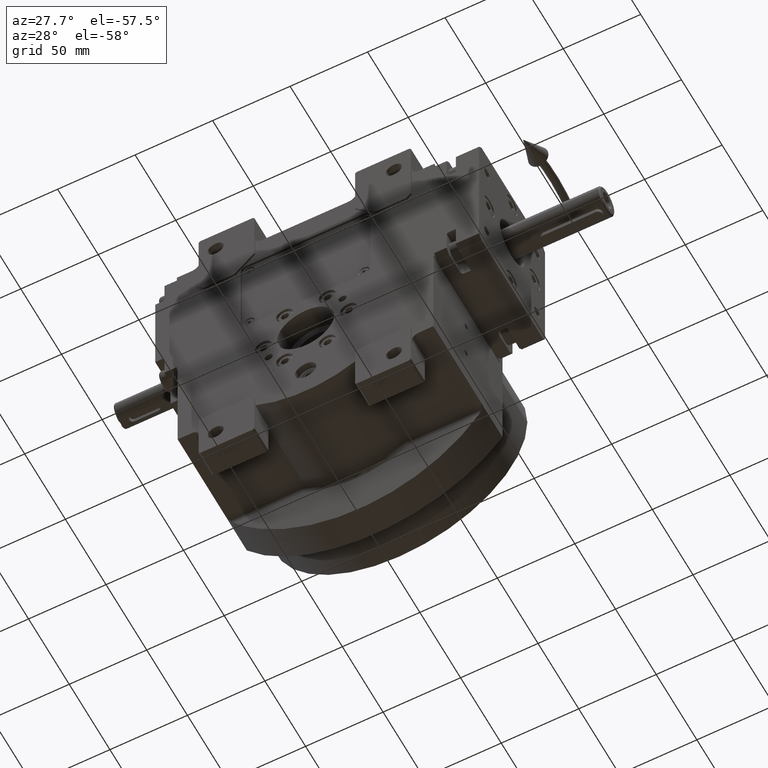
[diagram: clean part render]
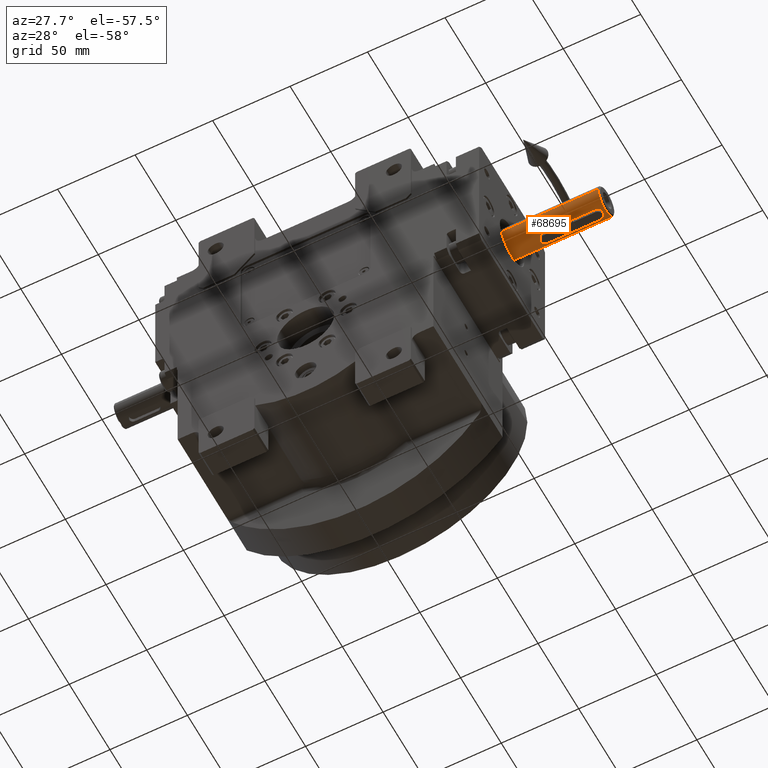
[diagram: same view with one face highlighted and labeled with its STEP entity id]
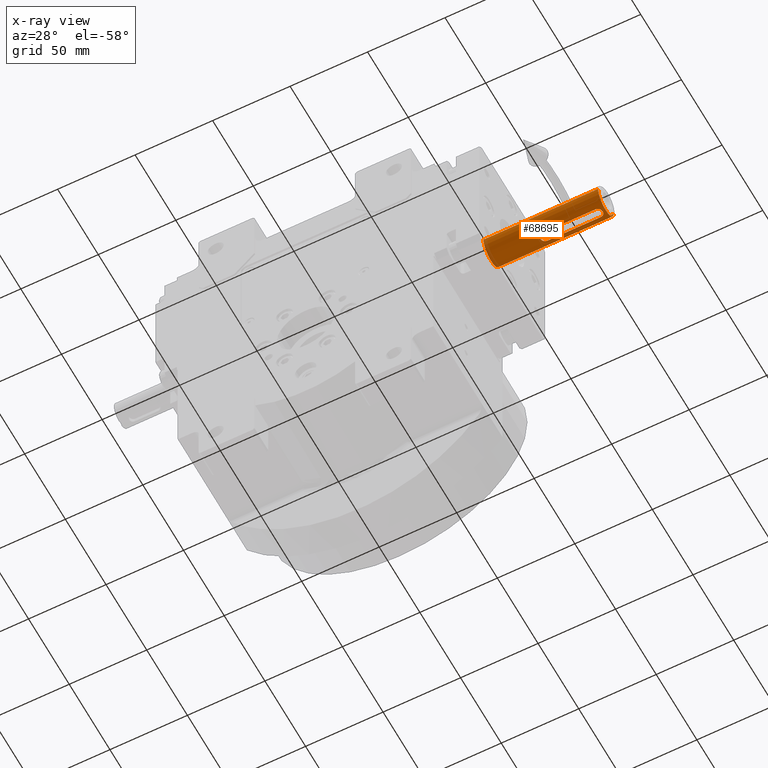
[diagram: x-ray of the same camera — body ghosted, the highlighted face saturated]
A machine part, auxiliary view. The second image highlights one B-rep face of the part: STEP entity #68695.
The next image is the same camera in x-ray: the body ghosted, the highlighted face saturated — about 4% of this face is hidden behind the body in this view.
In plain terms, the highlighted cylindrical surface (edge-blend (fillet) strip) has radius 9.5 mm, axis along (-1, -0, -0).
Its self-contained STEP definition (entity closure, byte-faithful):
#104 = CARTESIAN_POINT ( 'NONE',  ( 2.786101665362830992, -99.38739665115124922, 9.082041199737556525 ) ) ;
#459 = CARTESIAN_POINT ( 'NONE',  ( 1.235793668741991036, -97.76628801565973959, 9.419140061994129454 ) ) ;
#614 = CARTESIAN_POINT ( 'NONE',  ( 5.348145711521341872E-11, -137.4999999999946283, 9.499999999999761968 ) ) ;
#830 = CARTESIAN_POINT ( 'NONE',  ( 2.999999999999923173, -100.2965243989202548, 9.015959503623328430 ) ) ;
#978 = CARTESIAN_POINT ( 'NONE',  ( 2.097753202479689438, -136.6448874191244727, 9.265577959733482416 ) ) ;
#1197 = CARTESIAN_POINT ( 'NONE',  ( -2.009855692750635026, -98.27258817053152029, 9.284892350035061526 ) ) ;
#1447 = CARTESIAN_POINT ( 'NONE',  ( -2.979241966011219489, -134.9036005349896641, 9.023080024022270607 ) ) ;
#1466 = B_SPLINE_CURVE_WITH_KNOTS ( 'NONE', 3,
 ( #614, #68795, #28838, #29201, #35432, #1690, #63652, #40969, #17855, #51225, #68073, #18928, #18579, #46815, #35081, #63299, #24055, #18211, #34716, #69162, #7563, #978, #13066, #45723, #6484, #11987, #57442, #67714, #57093, #41325, #7203, #17507, #39881, #57804, #40238, #34350, #62215 ),
 .UNSPECIFIED., .F., .F.,
 ( 4, 2, 2, 1, 1, 1, 2, 2, 2, 2, 2, 2, 2, 2, 2, 2, 1, 1, 2, 2, 4 ),
 ( 0.5000000000000000000, 0.5624999999999529265, 0.5937499999999292788, 0.6093749999999175104, 0.6171874999999129585, 0.6210937499999107381, 0.6230468749999096278, 0.6249999999999085176, 0.6874999999998867573, 0.7187499999998735456, 0.7343749999998692157, 0.7421874999998671063, 0.7499999999998649969, 0.8124999999998300249, 0.8437499999998124833, 0.8593749999998037126, 0.8671874999997993827, 0.8710937499998030464, 0.8730468749998048228, 0.8749999999998067102, 1.000000000000000000 ),
 .UNSPECIFIED. ) ;
#1549 = CARTESIAN_POINT ( 'NONE',  ( 2.233000108996110900, -98.49633364467418062, 9.234080587709756927 ) ) ;
#1690 = CARTESIAN_POINT ( 'NONE',  ( 0.9122892548982852734, -137.3583703725897180, 9.456103506591537311 ) ) ;
#1912 = DIRECTION ( 'NONE',  ( 4.683861624749757595E-31, -1.000000000000000000, -9.367723249499515189E-31 ) ) ;
#2182 = CARTESIAN_POINT ( 'NONE',  ( -3.000000000000099032, -134.5000000000000000, 9.013878188659973034 ) ) ;
#2533 = CARTESIAN_POINT ( 'NONE',  ( -1.515281974658803321, -137.0910376722993647, 9.377877325281463783 ) ) ;
#2954 = CARTESIAN_POINT ( 'NONE',  ( -3.000000000000082601, -100.5000000000000000, 9.013878188659973034 ) ) ;
#3005 = CARTESIAN_POINT ( 'NONE',  ( -2.759557796081211656, -99.32315904151028008, 9.090128972670342478 ) ) ;
#3180 = DIRECTION ( 'NONE',  ( 4.683861624749757595E-31, -1.000000000000000000, -9.367723249499515189E-31 ) ) ;
#3870 = CARTESIAN_POINT ( 'NONE',  ( 9.252591108064056158, -139.4998466943011977, 2.486564772192656037 ) ) ;
#3964 = VERTEX_POINT ( 'NONE', #15832 ) ;
#4692 = EDGE_CURVE ( 'NONE', #3964, #35497, #35842, .T. ) ;
#5620 = CARTESIAN_POINT ( 'NONE',  ( 1.181140547334593727, -97.74227524908900477, 9.426234887611801838 ) ) ;
#5980 = CARTESIAN_POINT ( 'NONE',  ( 2.779390155847576871, -99.37082958573847691, 9.084081746770817034 ) ) ;
#6333 = CARTESIAN_POINT ( 'NONE',  ( -1.110854957117733743, -97.71319310011547543, 9.434807596888386882 ) ) ;
#6484 = CARTESIAN_POINT ( 'NONE',  ( 2.602468639309346354, -135.9955733868266350, 9.137631674337931997 ) ) ;
#6703 = CARTESIAN_POINT ( 'NONE',  ( -1.898695336270241452, -98.17662246852120234, 9.308038153982771234 ) ) ;
#6875 = AXIS2_PLACEMENT_3D ( 'NONE', #52154, #1912, #69366 ) ;
#7071 = CARTESIAN_POINT ( 'NONE',  ( -2.097753284790786488, -98.35511266164887445, 9.265577940295855797 ) ) ;
#7203 = CARTESIAN_POINT ( 'NONE',  ( 2.759557787002767881, -135.6768409796904393, 9.090128969929150315 ) ) ;
#7323 = CARTESIAN_POINT ( 'NONE',  ( -2.853717067103960670, -135.4266295672364038, 9.061558691766251172 ) ) ;
#7423 = CARTESIAN_POINT ( 'NONE',  ( -2.737669274489143323, -99.27301793146652642, 9.096856662832257356 ) ) ;
#7563 = CARTESIAN_POINT ( 'NONE',  ( 2.076755474643335209, -136.6651843288679515, 9.270280646437230487 ) ) ;
#7676 = CARTESIAN_POINT ( 'NONE',  ( -2.654035305622171936, -135.9122420898385144, 9.123169023331190175 ) ) ;
#7934 = ORIENTED_EDGE ( 'NONE', *, *, #11785, .F. ) ;
#7987 = CARTESIAN_POINT ( 'NONE',  ( 2.999999999999917843, -100.5000000000000000, 9.013878188659973034 ) ) ;
#8060 = CARTESIAN_POINT ( 'NONE',  ( -1.158690052085281197, -137.2672150612251301, 9.429034014197243962 ) ) ;
#8470 = LINE ( 'NONE', #2954, #63814 ) ;
#8629 = ORIENTED_EDGE ( 'NONE', *, *, #61013, .T. ) ;
#8780 = CARTESIAN_POINT ( 'NONE',  ( -1.288025300381495208, -137.2096973346190225, 9.412060771001355519 ) ) ;
#9499 = CARTESIAN_POINT ( 'NONE',  ( -1.235793688551417802, -137.2337119753647698, 9.419140061578065826 ) ) ;
#10496 = CARTESIAN_POINT ( 'NONE',  ( -1.243527020587133824, -139.4998466943041819, 9.499846689728636662 ) ) ;
#11127 = CARTESIAN_POINT ( 'NONE',  ( -0.9122597830392107365, -97.64162015259859118, 9.456107010292281956 ) ) ;
#11193 = ORIENTED_EDGE ( 'NONE', *, *, #31422, .F. ) ;
#11492 = CARTESIAN_POINT ( 'NONE',  ( 1.324139233458395237, -97.80771359803623000, 9.406950157631133180 ) ) ;
#11785 = EDGE_CURVE ( 'NONE', #15199, #44065, #41003, .T. ) ;
#11846 = CARTESIAN_POINT ( 'NONE',  ( -0.9847355283867276210, -97.66541312523159490, 9.448973010786199112 ) ) ;
#11987 = CARTESIAN_POINT ( 'NONE',  ( 2.645266956385125656, -135.9173894447391717, 9.124972350850661940 ) ) ;
#12202 = CARTESIAN_POINT ( 'NONE',  ( 1.158689120431839026, -97.73278455093795003, 9.429034126038732921 ) ) ;
#12380 = CARTESIAN_POINT ( 'NONE',  ( -9.500000000000065725, -65.50000000000000000, 5.273559366969493567E-13 ) ) ;
#12567 = CARTESIAN_POINT ( 'NONE',  ( 1.210162142626706627, -97.75480632011371540, 9.422533050649411379 ) ) ;
#12834 = CARTESIAN_POINT ( 'NONE',  ( -2.779390174406766167, -135.6291703686030417, 9.084081743598442671 ) ) ;
#13066 = CARTESIAN_POINT ( 'NONE',  ( 2.309830933422241994, -136.4328102777803053, 9.217002154046662454 ) ) ;
#13549 = CARTESIAN_POINT ( 'NONE',  ( -1.763474083807786252, -136.9348268693561579, 9.335481082783305240 ) ) ;
#13927 = CARTESIAN_POINT ( 'NONE',  ( -2.211729656253432985, -136.5271384844810427, 9.239144198828508792 ) ) ;
#14333 = VERTEX_POINT ( 'NONE', #44129 ) ;
#14498 = B_SPLINE_CURVE_WITH_KNOTS ( 'NONE', 3,
 ( #34937, #830, #39374, #40452, #56228, #68293, #61718, #23912, #104, #5980, #28681, #18070, #28325, #62789, #45943, #33856, #61353, #23198, #1549, #22461, #46303, #67202, #62432, #50709, #67570, #29060, #11492, #18420, #459, #12567, #5620, #16985, #22826, #12202, #45209, #17366, #39743, #17715, #27966, #62076, #11127, #11846, #34206, #6333, #51072, #45592, #33489, #34562, #67938, #40100, #56943, #6703, #51449, #1197, #57306, #23547, #7071, #55857, #29416, #51795, #50354, #36030, #63873, #7423, #41915, #3005, #25008, #30522, #19516, #31258, #29785, #57665 ),
 .UNSPECIFIED., .F., .F.,
 ( 4, 2, 2, 1, 1, 1, 2, 2, 2, 2, 2, 2, 2, 2, 2, 2, 1, 1, 2, 2, 2, 2, 2, 1, 1, 1, 2, 2, 2, 2, 2, 2, 2, 2, 2, 2, 1, 1, 2, 2, 4 ),
 ( 0.000000000000000000, 0.06250000000009500734, 0.09375000000014034607, 0.1093750000001630363, 0.1171875000001744160, 0.1210937500001801337, 0.1230468750001829925, 0.1250000000001858513, 0.1875000000001509903, 0.2187500000001353917, 0.2343750000001262046, 0.2421875000001215972, 0.2500000000001169620, 0.3125000000000708877, 0.3437500000000467404, 0.3593750000000346390, 0.3671875000000274780, 0.3710937500000238698, 0.3730468750000232592, 0.3750000000000225930, 0.5000000000000260902, 0.5625000000000279776, 0.5937500000000288658, 0.6093750000000299760, 0.6171875000000305311, 0.6210937500000315303, 0.6230468750000327516, 0.6250000000000338618, 0.6875000000000427436, 0.7187500000000471845, 0.7343750000000494049, 0.7421875000000506262, 0.7500000000000518474, 0.8125000000000587308, 0.8437500000000640599, 0.8593750000000667244, 0.8671875000000652811, 0.8710937500000643929, 0.8730468750000640599, 0.8750000000000636158, 1.000000000000000000 ),
 .UNSPECIFIED. ) ;
#15199 = VERTEX_POINT ( 'NONE', #15704 ) ;
#15209 = VECTOR ( 'NONE', #28878, 1000.000000000000000 ) ;
#15704 = CARTESIAN_POINT ( 'NONE',  ( 9.499999999999934275, -65.50000000000000000, 0.000000000000000000 ) ) ;
#15832 = CARTESIAN_POINT ( 'NONE',  ( 2.999999999999917843, -100.5000000000000000, 9.013878188659973034 ) ) ;
#16801 = VERTEX_POINT ( 'NONE', #12380 ) ;
#16985 = CARTESIAN_POINT ( 'NONE',  ( 1.168895048913221046, -97.73708418927932939, 9.427766392780942084 ) ) ;
#17188 = VERTEX_POINT ( 'NONE', #32861 ) ;
#17366 = CARTESIAN_POINT ( 'NONE',  ( 0.3746751369924418706, -97.50000002630594054, 9.499993001932642400 ) ) ;
#17507 = CARTESIAN_POINT ( 'NONE',  ( 2.764238482857352075, -135.6657621566685634, 9.088697174642812016 ) ) ;
#17715 = CARTESIAN_POINT ( 'NONE',  ( -0.3796884225539630120, -97.51759804841002222, 9.494152383383214655 ) ) ;
#17855 = CARTESIAN_POINT ( 'NONE',  ( 1.110860993346935333, -137.2868044789691453, 9.434806857722406903 ) ) ;
#17969 = CARTESIAN_POINT ( 'NONE',  ( -2.830818324944660791, -135.4952364210569442, 9.068480760018553966 ) ) ;
#18070 = CARTESIAN_POINT ( 'NONE',  ( 2.771832886844528776, -99.35241223361512652, 9.086380949645821659 ) ) ;
#18211 = CARTESIAN_POINT ( 'NONE',  ( 1.943068524284928156, -136.7864859858514990, 9.299014728045641220 ) ) ;
#18420 = CARTESIAN_POINT ( 'NONE',  ( 1.288025288732198126, -97.79030265976052760, 9.412060770623982719 ) ) ;
#18579 = CARTESIAN_POINT ( 'NONE',  ( 1.281189302773732663, -137.2162322305360931, 9.414028769672855290 ) ) ;
#18928 = CARTESIAN_POINT ( 'NONE',  ( 1.148703882575740298, -137.2713711948928221, 9.430257398825217408 ) ) ;
#19516 = CARTESIAN_POINT ( 'NONE',  ( -2.768052972860145733, -99.34331589979032628, 9.087531877680280701 ) ) ;
#19770 = CARTESIAN_POINT ( 'NONE',  ( 5.348145711521341872E-11, -137.4999999999946283, 9.499999999999761968 ) ) ;
#20745 = CARTESIAN_POINT ( 'NONE',  ( -9.500000000000065725, -139.4999808407454225, 1.387778780781445676E-14 ) ) ;
#20868 = CARTESIAN_POINT ( 'NONE',  ( -9.500000000000065725, -139.4999808407454225, 1.387778780781445676E-14 ) ) ;
#21941 = DIRECTION ( 'NONE',  ( 4.683861624749757595E-31, -1.000000000000000000, -9.367723249499515189E-31 ) ) ;
#22087 = CYLINDRICAL_SURFACE ( 'NONE', #62140, 9.500000000000000000 ) ;
#22189 = CARTESIAN_POINT ( 'NONE',  ( 5.838099624535307619, -139.4998466943025619, 7.596712404277949027 ) ) ;
#22461 = CARTESIAN_POINT ( 'NONE',  ( 2.211729640948800757, -98.47286149866403093, 9.239144202690315666 ) ) ;
#22826 = CARTESIAN_POINT ( 'NONE',  ( 1.160774488533430793, -97.73366271050075227, 9.428775174807883630 ) ) ;
#23198 = CARTESIAN_POINT ( 'NONE',  ( 2.294623447025719187, -98.56646007609728599, 9.219224885940105807 ) ) ;
#23547 = CARTESIAN_POINT ( 'NONE',  ( -2.076755534685462479, -98.33481572862692133, 9.270280632153106382 ) ) ;
#23912 = CARTESIAN_POINT ( 'NONE',  ( 2.801440646741421236, -99.42625462617388621, 9.077383267056914562 ) ) ;
#24055 = CARTESIAN_POINT ( 'NONE',  ( 1.898695308353822941, -136.8233775540947192, 9.308038160801771710 ) ) ;
#24172 = CARTESIAN_POINT ( 'NONE',  ( -2.722407539866268156, -135.7665295004914867, 9.101428116198414742 ) ) ;
#24550 = CARTESIAN_POINT ( 'NONE',  ( -2.499491400642898764, -136.1619643555331436, 9.166504955602142957 ) ) ;
#24906 = CARTESIAN_POINT ( 'NONE',  ( -0.3747367569403776688, -137.5000000000000000, 9.500000014546388982 ) ) ;
#25008 = CARTESIAN_POINT ( 'NONE',  ( -2.764238496094473252, -99.33423787470611899, 9.088697175774271386 ) ) ;
#25279 = CARTESIAN_POINT ( 'NONE',  ( -2.143571795969489102, -136.5990689549265653, 9.255083290078999880 ) ) ;
#25637 = CARTESIAN_POINT ( 'NONE',  ( -1.435996223192500754, -137.1353212261336125, 9.390445063870702214 ) ) ;
#26240 = CARTESIAN_POINT ( 'NONE',  ( 1.243527026386956669, -139.4998466943036703, 9.499846688969983077 ) ) ;
#26602 = CARTESIAN_POINT ( 'NONE',  ( -2.486564769367286321, -139.4998466943044946, 9.252591108819977705 ) ) ;
#27300 = CARTESIAN_POINT ( 'NONE',  ( -8.300836726140465416, -139.4998466943060862, 4.784303107579976455 ) ) ;
#27306 = VECTOR ( 'NONE', #21941, 1000.000000000000000 ) ;
#27667 = CARTESIAN_POINT ( 'NONE',  ( 7.596712406060411205, -139.4998466943020503, 5.838099622216796902 ) ) ;
#27966 = CARTESIAN_POINT ( 'NONE',  ( -0.6700262895659991891, -97.57411792000129935, 9.476593787887347631 ) ) ;
#28029 = ORIENTED_EDGE ( 'NONE', *, *, #64134, .F. ) ;
#28325 = CARTESIAN_POINT ( 'NONE',  ( 2.722407556804322226, -99.23347054365325448, 9.101428105267638458 ) ) ;
#28523 = CARTESIAN_POINT ( 'NONE',  ( -9.500000000000065725, -65.50000000000000000, 5.273559366969493567E-13 ) ) ;
#28681 = CARTESIAN_POINT ( 'NONE',  ( 2.774885410507772043, -99.35980421794454287, 9.085451953719688944 ) ) ;
#28838 = CARTESIAN_POINT ( 'NONE',  ( 0.3797347091585063783, -137.4823960554267614, 9.494147124271441029 ) ) ;
#28878 = DIRECTION ( 'NONE',  ( 4.683861624749757595E-31, -1.000000000000000000, -9.367723249499515189E-31 ) ) ;
#29060 = CARTESIAN_POINT ( 'NONE',  ( 1.435996225511757096, -97.86467877490284195, 9.390445062414320532 ) ) ;
#29100 = ORIENTED_EDGE ( 'NONE', *, *, #68022, .F. ) ;
#29201 = CARTESIAN_POINT ( 'NONE',  ( 0.6700716314788145445, -137.4258716955598914, 9.476588529817618678 ) ) ;
#29416 = CARTESIAN_POINT ( 'NONE',  ( -2.447916037937487577, -98.75470971929519237, 9.180967618583439460 ) ) ;
#29785 = CARTESIAN_POINT ( 'NONE',  ( -3.000000000000075939, -100.0929497639062760, 9.018041906921343553 ) ) ;
#30428 = CARTESIAN_POINT ( 'NONE',  ( -0.7705588840869115330, -137.4287509887514602, 9.476588555391328939 ) ) ;
#30522 = CARTESIAN_POINT ( 'NONE',  ( -2.767317610896457225, -99.34156612770402717, 9.087756597495436850 ) ) ;
#31258 = CARTESIAN_POINT ( 'NONE',  ( -2.916389009766934937, -99.70028539845928606, 9.042361493599500477 ) ) ;
#31422 = EDGE_CURVE ( 'NONE', #44065, #33933, #39796, .T. ) ;
#31513 = CARTESIAN_POINT ( 'NONE',  ( -1.181140577651560220, -137.2577247379154528, 9.426234886118637135 ) ) ;
#32850 = CARTESIAN_POINT ( 'NONE',  ( -4.784303099978775897, -139.4998466943049777, 8.300836730522794582 ) ) ;
#32861 = CARTESIAN_POINT ( 'NONE',  ( 5.348145711521341872E-11, -137.4999999999946283, 9.499999999999761968 ) ) ;
#33489 = CARTESIAN_POINT ( 'NONE',  ( -1.148703946713940827, -97.72862883169422332, 9.430257394497802537 ) ) ;
#33856 = CARTESIAN_POINT ( 'NONE',  ( 2.439240572469500989, -98.74972238174069616, 9.182737684159796743 ) ) ;
#33933 = VERTEX_POINT ( 'NONE', #20868 ) ;
#34206 = CARTESIAN_POINT ( 'NONE',  ( -1.068898133186884314, -97.69667766413827792, 9.439689488641199944 ) ) ;
#34350 = CARTESIAN_POINT ( 'NONE',  ( 2.999999999999922728, -134.9070507244534269, 9.018041972219933200 ) ) ;
#34562 = CARTESIAN_POINT ( 'NONE',  ( -1.281189317409864525, -97.78376777896396277, 9.414028770577422378 ) ) ;
#34716 = CARTESIAN_POINT ( 'NONE',  ( 2.009855645629288645, -136.7274118719092826, 9.284892361262027549 ) ) ;
#34937 = CARTESIAN_POINT ( 'NONE',  ( 2.999999999999917843, -100.5000000000000000, 9.013878188659973034 ) ) ;
#35081 = CARTESIAN_POINT ( 'NONE',  ( 1.680644821390849364, -136.9869637456455678, 9.349632018685921864 ) ) ;
#35162 = EDGE_LOOP ( 'NONE', ( #7934, #63564, #8629, #11193 ) ) ;
#35199 = CARTESIAN_POINT ( 'NONE',  ( -2.774885425850079024, -135.6401957447407938, 9.085451951812240523 ) ) ;
#35432 = CARTESIAN_POINT ( 'NONE',  ( 0.7671322348754920917, -137.4020199207140536, 9.469272449704369876 ) ) ;
#35497 = VERTEX_POINT ( 'NONE', #66306 ) ;
#35842 = LINE ( 'NONE', #7987, #39810 ) ;
#35911 = CARTESIAN_POINT ( 'NONE',  ( -1.324139240797756134, -137.1922863982985348, 9.406950158389344452 ) ) ;
#36030 = CARTESIAN_POINT ( 'NONE',  ( -2.699222266585262542, -99.19011195750299237, 9.108662359077632331 ) ) ;
#36290 = CARTESIAN_POINT ( 'NONE',  ( -1.943281365728480203, -136.7993588111387737, 9.300959552143941877 ) ) ;
#37725 = CARTESIAN_POINT ( 'NONE',  ( 9.499961664422494678, -139.4999616814910155, -1.406597893716110548E-07 ) ) ;
#37811 = VERTEX_POINT ( 'NONE', #51094 ) ;
#38002 = CARTESIAN_POINT ( 'NONE',  ( 9.499846689352267504, -139.4998466943009419, 1.243527023487553063 ) ) ;
#38264 = FACE_BOUND ( 'NONE', #61775, .T. ) ;
#38370 = CARTESIAN_POINT ( 'NONE',  ( 9.499961664422494678, -139.4999616814910155, -1.406597893716110548E-07 ) ) ;
#38624 = DIRECTION ( 'NONE',  ( -4.683861624749757595E-31, 1.000000000000000000, 9.367723249499515189E-31 ) ) ;
#39180 = EDGE_CURVE ( 'NONE', #15199, #16801, #49019, .T. ) ;
#39374 = CARTESIAN_POINT ( 'NONE',  ( 2.979241934065827824, -100.0963992266660227, 9.023080055721541370 ) ) ;
#39641 = CARTESIAN_POINT ( 'NONE',  ( -3.000000000000075495, -134.7034754428541987, 9.015959482524445789 ) ) ;
#39743 = CARTESIAN_POINT ( 'NONE',  ( -0.1873372525511108888, -97.49999998684707236, 9.500003499031958398 ) ) ;
#39796 = B_SPLINE_CURVE_WITH_KNOTS ( 'NONE', 3,
 ( #38370, #38002, #3870, #66572, #27667, #22189, #44576, #60721, #26240, #10496, #26602, #32850, #55210, #66925, #27300, #49698, #70972, #20745 ),
 .UNSPECIFIED., .F., .F.,
 ( 4, 2, 2, 2, 2, 2, 2, 2, 4 ),
 ( 0.000000000000000000, 0.1250000000000000833, 0.2500000000000001665, 0.3750000000000001665, 0.5000000000000002220, 0.6250000000000002220, 0.7500000000000001110, 0.8750000000000001110, 1.000000000000000000 ),
 .UNSPECIFIED. ) ;
#39810 = VECTOR ( 'NONE', #3180, 1000.000000000000000 ) ;
#39881 = CARTESIAN_POINT ( 'NONE',  ( 2.767317594863722530, -135.6584339105825734, 9.087756597457357088 ) ) ;
#40100 = CARTESIAN_POINT ( 'NONE',  ( -1.680644822948894168, -98.01303625530894692, 9.349632018007966394 ) ) ;
#40238 = CARTESIAN_POINT ( 'NONE',  ( 2.916388821839672740, -135.2997150700380757, 9.042361559259964210 ) ) ;
#40452 = CARTESIAN_POINT ( 'NONE',  ( 2.920503302003506274, -99.80692389705797041, 9.041319739571193281 ) ) ;
#40969 = CARTESIAN_POINT ( 'NONE',  ( 1.068909936755656709, -137.3033177801153215, 9.439688054087657321 ) ) ;
#41003 = LINE ( 'NONE', #58208, #15209 ) ;
#41080 = CARTESIAN_POINT ( 'NONE',  ( -2.920503359152426537, -135.1930758617577624, 9.041319707718995957 ) ) ;
#41325 = CARTESIAN_POINT ( 'NONE',  ( 2.748194190245317081, -135.7032927194788101, 9.093616332154452309 ) ) ;
#41452 = CARTESIAN_POINT ( 'NONE',  ( -2.294623438943612648, -136.4335399329433187, 9.219224887998418438 ) ) ;
#41915 = CARTESIAN_POINT ( 'NONE',  ( -2.748194189871639104, -99.29670727933954311, 9.093616338439288072 ) ) ;
#42169 = CARTESIAN_POINT ( 'NONE',  ( -1.210162166939586115, -137.2451936691271897, 9.422533049781094405 ) ) ;
#44065 = VERTEX_POINT ( 'NONE', #37725 ) ;
#44129 = CARTESIAN_POINT ( 'NONE',  ( -3.000000000000099032, -134.5000000000000000, 9.013878188659973034 ) ) ;
#44576 = CARTESIAN_POINT ( 'NONE',  ( 4.784303105047607474, -139.4998466943028745, 8.300836727603803311 ) ) ;
#45209 = CARTESIAN_POINT ( 'NONE',  ( 0.7706161163638139966, -97.57127283665346340, 9.476581539417944455 ) ) ;
#45592 = CARTESIAN_POINT ( 'NONE',  ( -1.140768032649949859, -97.72534866427945133, 9.431223335599110413 ) ) ;
#45723 = CARTESIAN_POINT ( 'NONE',  ( 2.447916105662388375, -136.2452901866254251, 9.180967598890541481 ) ) ;
#45943 = CARTESIAN_POINT ( 'NONE',  ( 2.499491442532494556, -98.83803570730432853, 9.166504942301695991 ) ) ;
#46303 = CARTESIAN_POINT ( 'NONE',  ( 2.167673402036187635, -98.42581810576915302, 9.249494861432760118 ) ) ;
#46815 = CARTESIAN_POINT ( 'NONE',  ( 1.432446444446085820, -137.1431647574616477, 9.392028262234354941 ) ) ;
#47293 = CARTESIAN_POINT ( 'NONE',  ( -2.439240535440532209, -136.2502776682960643, 9.182737694954422381 ) ) ;
#48252 = ORIENTED_EDGE ( 'NONE', *, *, #4692, .T. ) ;
#48876 = B_SPLINE_CURVE_WITH_KNOTS ( 'NONE', 3,
 ( #2182, #39641, #1447, #41080, #68187, #7323, #17969, #68540, #63055, #12834, #35199, #52043, #24172, #7676, #24550, #47293, #69995, #41452, #63773, #13927, #70348, #25279, #36290, #13549, #2533, #25637, #35911, #8780, #9499, #42169, #31513, #53151, #58292, #8060, #30428, #24906, #19770 ),
 .UNSPECIFIED., .F., .F.,
 ( 4, 2, 2, 1, 1, 1, 2, 2, 2, 2, 2, 2, 2, 2, 2, 2, 1, 1, 2, 2, 4 ),
 ( 0.000000000000000000, 0.06249999999997334077, 0.09374999999996000422, 0.1093749999999533151, 0.1171874999999499706, 0.1210937499999483191, 0.1230468749999474726, 0.1249999999999466260, 0.1874999999999215072, 0.2187499999999125977, 0.2343749999999110711, 0.2421874999999077127, 0.2499999999999043543, 0.3124999999999106826, 0.3437499999999161782, 0.3593749999999190092, 0.3671874999999204525, 0.3710937499999235611, 0.3730468749999251710, 0.3749999999999267253, 0.5000000000000000000 ),
 .UNSPECIFIED. ) ;
#49019 = CIRCLE ( 'NONE', #6875, 9.500000000000000000 ) ;
#49589 = ORIENTED_EDGE ( 'NONE', *, *, #57455, .F. ) ;
#49698 = CARTESIAN_POINT ( 'NONE',  ( -9.252591106540734245, -139.4998466943066830, 2.486564777840073237 ) ) ;
#50354 = CARTESIAN_POINT ( 'NONE',  ( -2.645266902534336939, -99.08261045312863757, 9.124972373101158496 ) ) ;
#50709 = CARTESIAN_POINT ( 'NONE',  ( 1.763474082873049076, -98.06517313029257821, 9.335481083612371833 ) ) ;
#51072 = CARTESIAN_POINT ( 'NONE',  ( -1.128806930398036812, -97.72046107186513098, 9.432663900991398620 ) ) ;
#51094 = CARTESIAN_POINT ( 'NONE',  ( -3.000000000000082601, -100.5000000000000000, 9.013878188659973034 ) ) ;
#51225 = CARTESIAN_POINT ( 'NONE',  ( 1.128810387914204183, -137.2795375218082086, 9.432663475260291364 ) ) ;
#51449 = CARTESIAN_POINT ( 'NONE',  ( -1.943068559403307249, -98.21351404368817839, 9.299014719597199274 ) ) ;
#51795 = CARTESIAN_POINT ( 'NONE',  ( -2.602468575477382196, -99.00442650236387010, 9.137631697891062998 ) ) ;
#52043 = CARTESIAN_POINT ( 'NONE',  ( -2.771832899712923570, -135.6475877353118449, 9.086380948673349778 ) ) ;
#52154 = CARTESIAN_POINT ( 'NONE',  ( 2.927413515468598497E-29, -65.50000000000000000, 0.000000000000000000 ) ) ;
#52598 = EDGE_CURVE ( 'NONE', #3964, #37811, #14498, .T. ) ;
#53151 = CARTESIAN_POINT ( 'NONE',  ( -1.168895081964845151, -137.2629157967361948, 9.427766390999158475 ) ) ;
#55115 = FACE_OUTER_BOUND ( 'NONE', #35162, .T. ) ;
#55210 = CARTESIAN_POINT ( 'NONE',  ( -5.838099619895764647, -139.4998466943052620, 7.596712407840009007 ) ) ;
#55857 = CARTESIAN_POINT ( 'NONE',  ( -2.309830897740321465, -98.56718969883681325, 9.217002160808576150 ) ) ;
#56228 = CARTESIAN_POINT ( 'NONE',  ( 2.896334151371440235, -99.71220415555752936, 9.048659443471464670 ) ) ;
#56943 = CARTESIAN_POINT ( 'NONE',  ( -1.766836907354573993, -98.07290381776321908, 9.333934021171936379 ) ) ;
#57093 = CARTESIAN_POINT ( 'NONE',  ( 2.737669282503632839, -135.7269820504866118, 9.096856653874146659 ) ) ;
#57306 = CARTESIAN_POINT ( 'NONE',  ( -2.032155403112696046, -98.29290215498996020, 9.280087023850386529 ) ) ;
#57442 = CARTESIAN_POINT ( 'NONE',  ( 2.699222297941167081, -135.8098879774420311, 9.108662342665146738 ) ) ;
#57455 = EDGE_CURVE ( 'NONE', #14333, #17188, #48876, .T. ) ;
#57665 = CARTESIAN_POINT ( 'NONE',  ( -3.000000000000082601, -100.5000000000000000, 9.013878188659973034 ) ) ;
#57804 = CARTESIAN_POINT ( 'NONE',  ( 2.768052956639070583, -135.6566841389912668, 9.087531877756950038 ) ) ;
#58208 = CARTESIAN_POINT ( 'NONE',  ( 9.499999999999934275, -65.50000000000000000, 0.000000000000000000 ) ) ;
#58292 = CARTESIAN_POINT ( 'NONE',  ( -1.160774523444123130, -137.2663372748490360, 9.428775172829066520 ) ) ;
#59061 = ORIENTED_EDGE ( 'NONE', *, *, #52598, .F. ) ;
#60721 = CARTESIAN_POINT ( 'NONE',  ( 2.486564775016372408, -139.4998466943034430, 9.252591107302963636 ) ) ;
#61013 = EDGE_CURVE ( 'NONE', #16801, #33933, #61558, .T. ) ;
#61353 = CARTESIAN_POINT ( 'NONE',  ( 2.332787512060606083, -98.61282115277484195, 9.209767942323020762 ) ) ;
#61558 = LINE ( 'NONE', #28523, #27306 ) ;
#61718 = CARTESIAN_POINT ( 'NONE',  ( 2.830818276501263497, -99.50476344352320268, 9.068480776616844707 ) ) ;
#61775 = EDGE_LOOP ( 'NONE', ( #48252, #29100, #49589, #28029, #59061 ) ) ;
#62076 = CARTESIAN_POINT ( 'NONE',  ( -0.7670911040149673843, -97.59796893654346661, 9.469277269051602275 ) ) ;
#62140 = AXIS2_PLACEMENT_3D ( 'NONE', #71596, #38624, #72320 ) ;
#62215 = CARTESIAN_POINT ( 'NONE',  ( 2.999999999999900968, -134.5000000000000000, 9.013878188659973034 ) ) ;
#62432 = CARTESIAN_POINT ( 'NONE',  ( 1.943281345365760027, -98.20064117612012922, 9.300959556781824844 ) ) ;
#62789 = CARTESIAN_POINT ( 'NONE',  ( 2.654035345345563179, -99.08775798405100943, 9.123169007479537740 ) ) ;
#63055 = CARTESIAN_POINT ( 'NONE',  ( -2.786101688588199288, -135.6126032908526895, 9.082041194698554420 ) ) ;
#63299 = CARTESIAN_POINT ( 'NONE',  ( 1.766836897842546827, -136.9270961884042492, 9.333934023771325528 ) ) ;
#63564 = ORIENTED_EDGE ( 'NONE', *, *, #39180, .T. ) ;
#63652 = CARTESIAN_POINT ( 'NONE',  ( 0.9847578407999324490, -137.3345789351964470, 9.448970329299379856 ) ) ;
#63773 = CARTESIAN_POINT ( 'NONE',  ( -2.233000117979122123, -136.5036663451818697, 9.234080585405582298 ) ) ;
#63814 = VECTOR ( 'NONE', #63828, 1000.000000000000000 ) ;
#63828 = DIRECTION ( 'NONE',  ( 4.683861624749757595E-31, -1.000000000000000000, -9.367723249499515189E-31 ) ) ;
#63873 = CARTESIAN_POINT ( 'NONE',  ( -2.715497769375539328, -99.22432603050229716, 9.103672183263343598 ) ) ;
#64134 = EDGE_CURVE ( 'NONE', #37811, #14333, #8470, .T. ) ;
#66306 = CARTESIAN_POINT ( 'NONE',  ( 2.999999999999900968, -134.5000000000000000, 9.013878188659973034 ) ) ;
#66572 = CARTESIAN_POINT ( 'NONE',  ( 8.300836729065119712, -139.4998466943017377, 4.784303102514393835 ) ) ;
#66925 = CARTESIAN_POINT ( 'NONE',  ( -7.596712402493168703, -139.4998466943058020, 5.838099626852363500 ) ) ;
#67202 = CARTESIAN_POINT ( 'NONE',  ( 2.143571747433680397, -98.40093099558531264, 9.255083301667887952 ) ) ;
#67570 = CARTESIAN_POINT ( 'NONE',  ( 1.515281979031432691, -97.90896233033446094, 9.377877323952098720 ) ) ;
#67714 = CARTESIAN_POINT ( 'NONE',  ( 2.715497791960401752, -135.7756739207887904, 9.103672169444207540 ) ) ;
#67938 = CARTESIAN_POINT ( 'NONE',  ( -1.432446439617622191, -97.85683523955150065, 9.392028264645826852 ) ) ;
#68022 = EDGE_CURVE ( 'NONE', #17188, #35497, #1466, .T. ) ;
#68073 = CARTESIAN_POINT ( 'NONE',  ( 1.140769747583928240, -137.2746506284574650, 9.431223122249384971 ) ) ;
#68187 = CARTESIAN_POINT ( 'NONE',  ( -2.896334213184976747, -135.2877956215677671, 9.048659414192901096 ) ) ;
#68293 = CARTESIAN_POINT ( 'NONE',  ( 2.853717011937232595, -99.57337026380001532, 9.061558713247453767 ) ) ;
#68540 = CARTESIAN_POINT ( 'NONE',  ( -2.801440679763872676, -135.5737452883029448, 9.077383257877743361 ) ) ;
#68695 = ADVANCED_FACE ( 'NONE', ( #55115, #38264 ), #22087, .T. ) ;
#68795 = CARTESIAN_POINT ( 'NONE',  ( 0.1873683784700692356, -137.4999999999999147, 9.499999992726094078 ) ) ;
#69162 = CARTESIAN_POINT ( 'NONE',  ( 2.032155351791240960, -136.7070978921703102, 9.280087036059251560 ) ) ;
#69366 = DIRECTION ( 'NONE',  ( 1.000000000000000000, 0.000000000000000000, -8.437694987151189707E-15 ) ) ;
#69995 = CARTESIAN_POINT ( 'NONE',  ( -2.332787495134699185, -136.3871788677842574, 9.209767946875800249 ) ) ;
#70348 = CARTESIAN_POINT ( 'NONE',  ( -2.167673431346316182, -136.5741818634464551, 9.249494854248775155 ) ) ;
#70972 = CARTESIAN_POINT ( 'NONE',  ( -9.499846688587128440, -139.4998466943069673, 1.243527029286559227 ) ) ;
#71596 = CARTESIAN_POINT ( 'NONE',  ( 2.927413515468598497E-29, -65.50000000000000000, 0.000000000000000000 ) ) ;
#72320 = DIRECTION ( 'NONE',  ( 1.000000000000000000, 0.000000000000000000, -8.437694987151189707E-15 ) ) ;